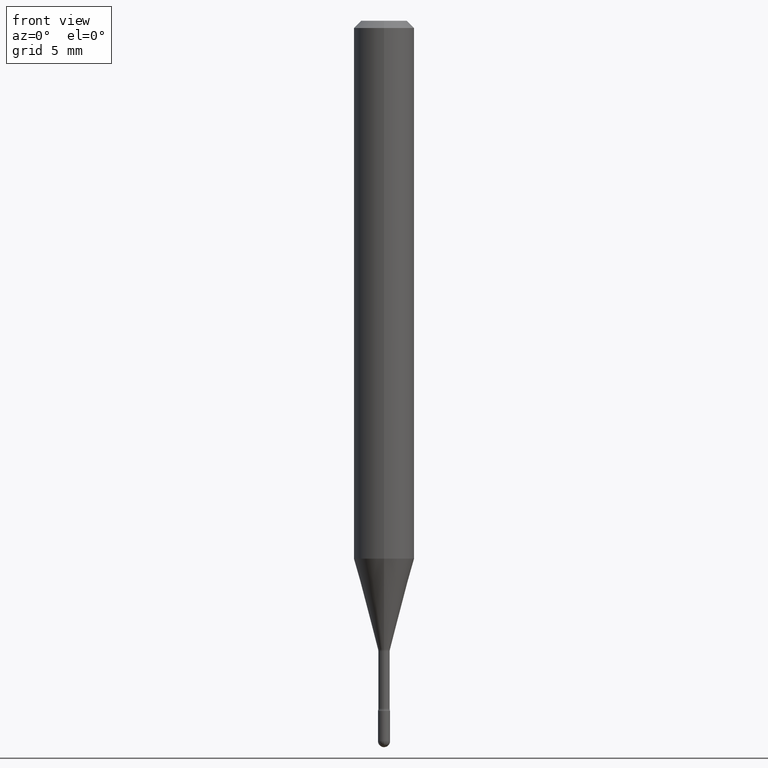
[diagram: clean part render]
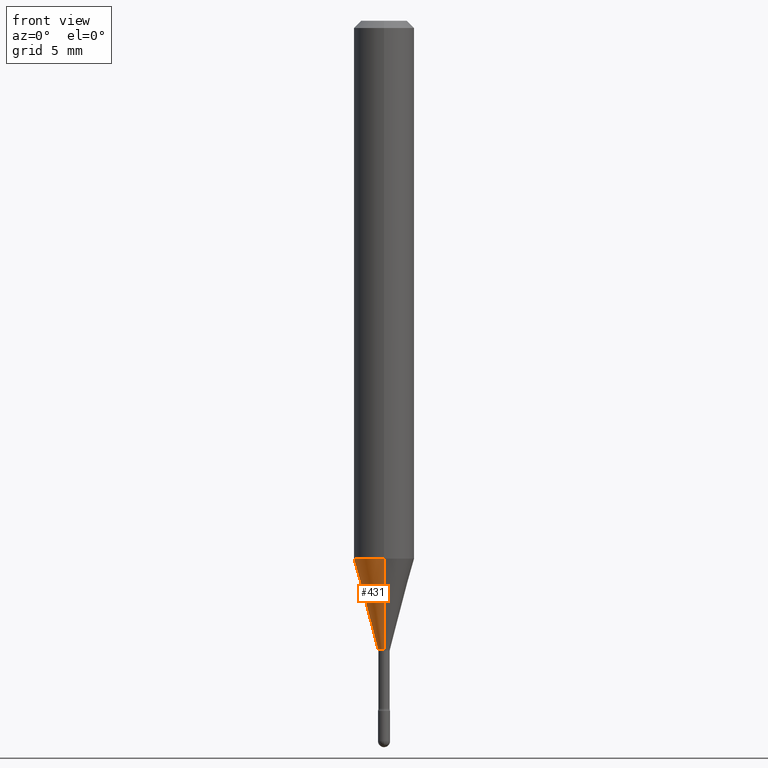
[diagram: same view with one face highlighted and labeled with its STEP entity id]
A machine part, front view. The second image highlights one B-rep face of the part: STEP entity #431.
In plain terms, the highlighted conical surface has half-angle 15 deg.
Its self-contained STEP definition (entity closure, byte-faithful):
#5 = DIRECTION ( 'NONE',  ( -2.445362175932988378E-29, 3.491634039433238901E-15, 1.000000000000000000 ) ) ;
#12 = DIRECTION ( 'NONE',  ( -6.982962677686265922E-15, -1.000000000000000000, 0.000000000000000000 ) ) ;
#34 = DIRECTION ( 'NONE',  ( -6.982962677686265922E-15, -1.000000000000000000, 4.370956789862821150E-15 ) ) ;
#75 = LINE ( 'NONE', #274, #146 ) ;
#82 = CARTESIAN_POINT ( 'NONE',  ( 2.656048273965166204E-16, 0.01226111260565944903, -1.298092501787273090 ) ) ;
#89 = EDGE_CURVE ( 'NONE', #279, #467, #125, .T. ) ;
#93 = CARTESIAN_POINT ( 'NONE',  ( 8.712044494294306372E-17, 0.01226111260565944557, -1.298092501787273090 ) ) ;
#113 = ORIENTED_EDGE ( 'NONE', *, *, #367, .T. ) ;
#125 = CIRCLE ( 'NONE', #331, 0.06250000000000000000 ) ;
#128 = CARTESIAN_POINT ( 'NONE',  ( 3.174306304732822436E-29, -4.532463965573495143E-15, -1.298092501787273090 ) ) ;
#130 = CARTESIAN_POINT ( 'NONE',  ( -8.561889171222842652E-17, -0.01226111260566851296, -1.298092501787273090 ) ) ;
#142 = VERTEX_POINT ( 'NONE', #82 ) ;
#146 = VECTOR ( 'NONE', #371, 39.37007874015748143 ) ;
#150 = EDGE_LOOP ( 'NONE', ( #245, #158, #113, #323 ) ) ;
#158 = ORIENTED_EDGE ( 'NONE', *, *, #432, .T. ) ;
#196 = CARTESIAN_POINT ( 'NONE',  ( 4.440892098500896347E-16, 0.06249999999999612116, -1.110598421515880174 ) ) ;
#239 = DIRECTION ( 'NONE',  ( -2.445362175932988378E-29, 3.491634039433238901E-15, 1.000000000000000000 ) ) ;
#242 = CARTESIAN_POINT ( 'NONE',  ( 2.715815372625813924E-29, -3.877803252705670068E-15, -1.110598421515879952 ) ) ;
#245 = ORIENTED_EDGE ( 'NONE', *, *, #484, .F. ) ;
#257 = FACE_OUTER_BOUND ( 'NONE', #150, .T. ) ;
#274 = CARTESIAN_POINT ( 'NONE',  ( -8.561889171222842652E-17, -0.01226111260566851296, -1.298092501787273090 ) ) ;
#275 = AXIS2_PLACEMENT_3D ( 'NONE', #434, #438, #392 ) ;
#279 = VERTEX_POINT ( 'NONE', #196 ) ;
#282 = CONICAL_SURFACE ( 'NONE', #275, 0.01226111260566397840, 0.2617993877991499629 ) ;
#294 = DIRECTION ( 'NONE',  ( 1.839019923739597949E-15, 0.2588190451025246253, 0.9659258262890670910 ) ) ;
#323 = ORIENTED_EDGE ( 'NONE', *, *, #89, .F. ) ;
#331 = AXIS2_PLACEMENT_3D ( 'NONE', #242, #239, #34 ) ;
#358 = CIRCLE ( 'NONE', #425, 0.01226111260566397840 ) ;
#367 = EDGE_CURVE ( 'NONE', #418, #467, #75, .T. ) ;
#371 = DIRECTION ( 'NONE',  ( -1.807323732225328167E-15, -0.2588190451025179084, 0.9659258262890690894 ) ) ;
#392 = DIRECTION ( 'NONE',  ( -6.982962677686265922E-15, -1.000000000000000000, 0.000000000000000000 ) ) ;
#418 = VERTEX_POINT ( 'NONE', #130 ) ;
#422 = LINE ( 'NONE', #93, #559 ) ;
#425 = AXIS2_PLACEMENT_3D ( 'NONE', #128, #5, #12 ) ;
#431 = ADVANCED_FACE ( 'NONE', ( #257 ), #282, .T. ) ;
#432 = EDGE_CURVE ( 'NONE', #142, #418, #358, .T. ) ;
#434 = CARTESIAN_POINT ( 'NONE',  ( 3.174306304732822436E-29, -4.532463965573495143E-15, -1.298092501787273090 ) ) ;
#438 = DIRECTION ( 'NONE',  ( -2.445362175932988378E-29, 3.491634039433238901E-15, 1.000000000000000000 ) ) ;
#467 = VERTEX_POINT ( 'NONE', #548 ) ;
#484 = EDGE_CURVE ( 'NONE', #142, #279, #422, .T. ) ;
#548 = CARTESIAN_POINT ( 'NONE',  ( -4.364351673553645523E-16, -0.06250000000000388578, -1.110598421515879730 ) ) ;
#559 = VECTOR ( 'NONE', #294, 39.37007874015748854 ) ;